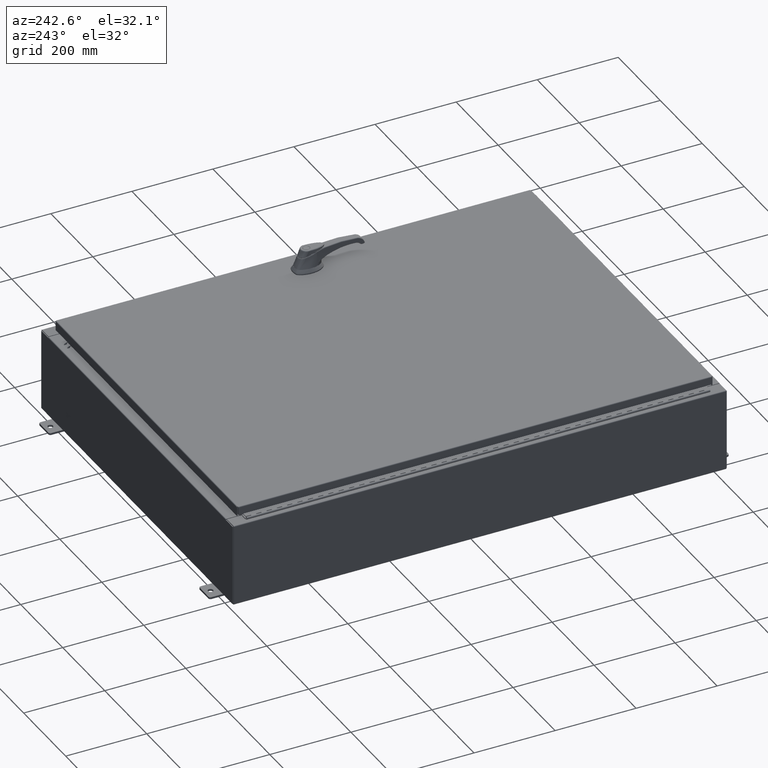
[diagram: clean part render]
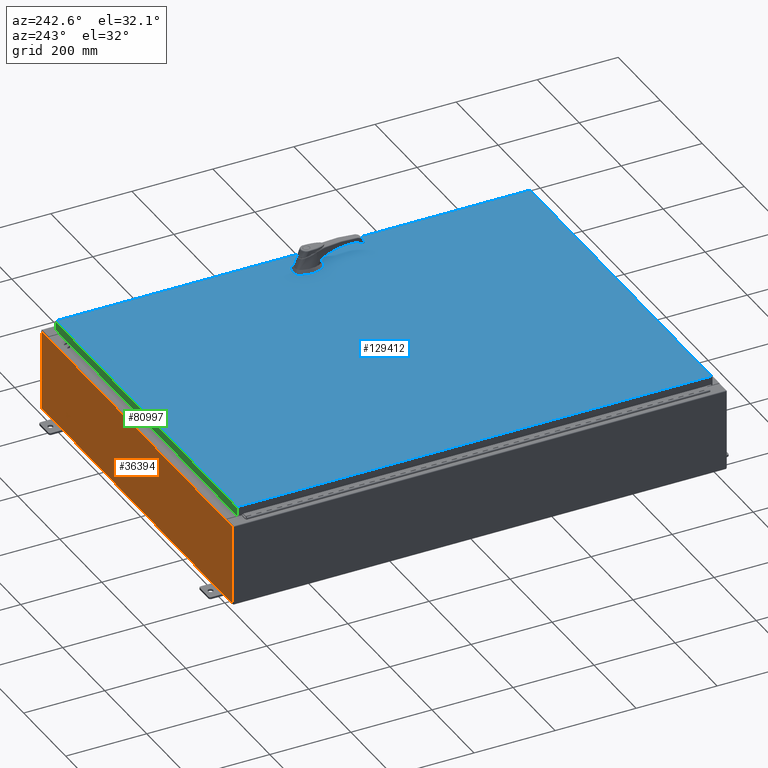
[diagram: same view with three faces highlighted in distinct colors, each labeled with its STEP entity id]
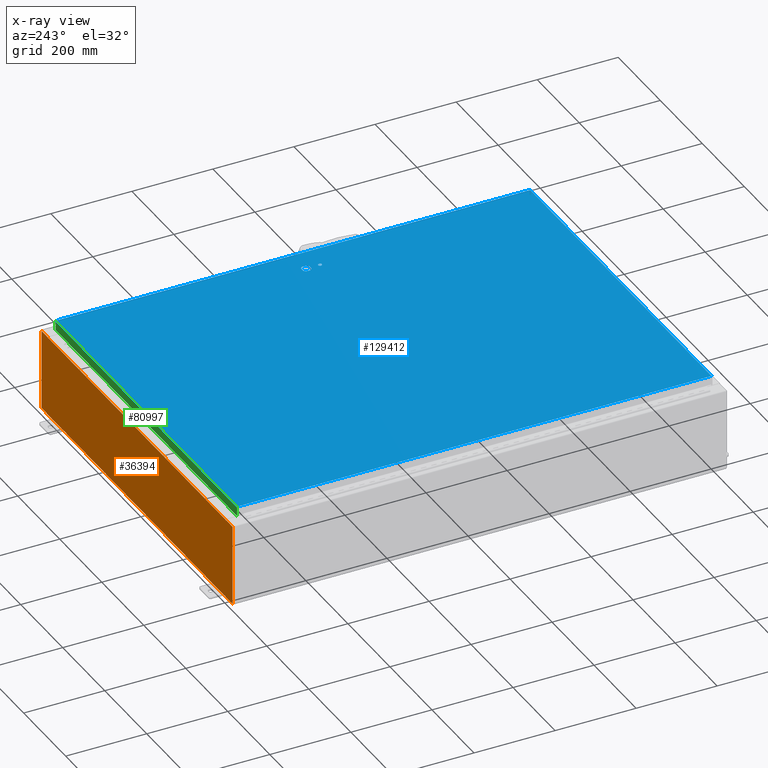
[diagram: x-ray of the same camera — body ghosted, the three highlighted faces saturated]
A machine part, auxiliary view with three faces highlighted in distinct colors.
The next image is the same camera in x-ray (body ghosted, the three faces saturated) — at least one of them is partly hidden behind the body in this view.
Their STEP definitions:

[orange] entity #36394 — the highlighted planar face has unit normal (0, -1, 0).
#1526 = DIRECTION ( 'NONE',  ( -1.000000000000000000, -0.0000000000000000000, -0.0000000000000000000 ) ) ;
#3626 = VECTOR ( 'NONE', #45635, 39.37007874015748100 ) ;
#8408 = ORIENTED_EDGE ( 'NONE', *, *, #131885, .F. ) ;
#9969 = EDGE_CURVE ( 'NONE', #25364, #134043, #122615, .T. ) ;
#9988 = PLANE ( 'NONE',  #117427 ) ;
#11700 = LINE ( 'NONE', #79971, #63613 ) ;
#13081 = VECTOR ( 'NONE', #34529, 39.37007874015748100 ) ;
#13874 = EDGE_CURVE ( 'NONE', #105020, #22393, #128257, .T. ) ;
#15534 = VECTOR ( 'NONE', #29879, 39.37007874015748100 ) ;
#18785 = EDGE_CURVE ( 'NONE', #134043, #75656, #129342, .T. ) ;
#18818 = ORIENTED_EDGE ( 'NONE', *, *, #130759, .T. ) ;
#20223 = VERTEX_POINT ( 'NONE', #79408 ) ;
#20431 = DIRECTION ( 'NONE',  ( 0.0000000000000000000, -0.0000000000000000000, -1.000000000000000000 ) ) ;
#22393 = VERTEX_POINT ( 'NONE', #46943 ) ;
#24419 = VECTOR ( 'NONE', #82714, 39.37007874015748100 ) ;
#25364 = VERTEX_POINT ( 'NONE', #45548 ) ;
#29879 = DIRECTION ( 'NONE',  ( 0.0000000000000000000, 0.0000000000000000000, -1.000000000000000000 ) ) ;
#30073 = DIRECTION ( 'NONE',  ( -0.0000000000000000000, 1.000000000000000000, -0.0000000000000000000 ) ) ;
#32538 = ORIENTED_EDGE ( 'NONE', *, *, #13874, .F. ) ;
#33141 = ORIENTED_EDGE ( 'NONE', *, *, #129634, .T. ) ;
#34529 = DIRECTION ( 'NONE',  ( -0.0000000000000000000, -0.0000000000000000000, 1.000000000000000000 ) ) ;
#36394 = ADVANCED_FACE ( 'NONE', ( #92485 ), #9988, .F. ) ;
#40284 = CIRCLE ( 'NONE', #71300, 0.01867499999999949400 ) ;
#40670 = LINE ( 'NONE', #86240, #13081 ) ;
#41398 = CARTESIAN_POINT ( 'NONE',  ( -16.65587499999999800, 0.0000000000000000000, 3.874950000000000100 ) ) ;
#44767 = DIRECTION ( 'NONE',  ( 1.000000000000000000, 0.0000000000000000000, 0.0000000000000000000 ) ) ;
#44915 = EDGE_CURVE ( 'NONE', #106220, #90435, #89660, .T. ) ;
#45548 = CARTESIAN_POINT ( 'NONE',  ( 17.92530000000000400, 0.0000000000000000000, 3.925300000000000500 ) ) ;
#45635 = DIRECTION ( 'NONE',  ( -8.681145560800009800E-014, 0.0000000000000000000, -1.000000000000000000 ) ) ;
#46943 = CARTESIAN_POINT ( 'NONE',  ( -16.67454999999999600, 0.0000000000000000000, 3.925300000000000500 ) ) ;
#50003 = ORIENTED_EDGE ( 'NONE', *, *, #77688, .T. ) ;
#51820 = DIRECTION ( 'NONE',  ( 0.0000000000000000000, 0.0000000000000000000, -1.000000000000000000 ) ) ;
#55176 = LINE ( 'NONE', #96252, #103937 ) ;
#56429 = CARTESIAN_POINT ( 'NONE',  ( -16.63719999999999600, 3.756290991288361700E-016, 3.912300000000000100 ) ) ;
#59054 = DIRECTION ( 'NONE',  ( 1.000000000000000000, 0.0000000000000000000, 0.0000000000000000000 ) ) ;
#62417 = LINE ( 'NONE', #122452, #117607 ) ;
#62728 = EDGE_CURVE ( 'NONE', #90435, #20223, #120056, .T. ) ;
#63431 = ORIENTED_EDGE ( 'NONE', *, *, #62728, .F. ) ;
#63574 = CARTESIAN_POINT ( 'NONE',  ( -17.92529999999999600, 0.0000000000000000000, -3.925299999999999100 ) ) ;
#63613 = VECTOR ( 'NONE', #59054, 39.37007874015748100 ) ;
#68989 = VERTEX_POINT ( 'NONE', #89304 ) ;
#69045 = VERTEX_POINT ( 'NONE', #120553 ) ;
#69971 = CARTESIAN_POINT ( 'NONE',  ( -16.63719999999999600, 3.756290991288361700E-016, 3.912300000000000100 ) ) ;
#70844 = VECTOR ( 'NONE', #1526, 39.37007874015748100 ) ;
#71133 = VECTOR ( 'NONE', #129013, 39.37007874015748100 ) ;
#71300 = AXIS2_PLACEMENT_3D ( 'NONE', #41398, #113952, #51820 ) ;
#75656 = VERTEX_POINT ( 'NONE', #110920 ) ;
#77688 = EDGE_CURVE ( 'NONE', #93826, #69045, #123100, .T. ) ;
#78621 = ORIENTED_EDGE ( 'NONE', *, *, #82834, .T. ) ;
#79408 = CARTESIAN_POINT ( 'NONE',  ( 16.63720000000000700, 0.0000000000000000000, 3.874950000000000100 ) ) ;
#79971 = CARTESIAN_POINT ( 'NONE',  ( -17.92529999999999600, 0.0000000000000000000, 3.925300000000000500 ) ) ;
#80075 = EDGE_CURVE ( 'NONE', #93826, #68989, #62417, .T. ) ;
#80154 = ORIENTED_EDGE ( 'NONE', *, *, #44915, .F. ) ;
#80904 = AXIS2_PLACEMENT_3D ( 'NONE', #92234, #30073, #102669 ) ;
#82587 = DIRECTION ( 'NONE',  ( 0.0000000000000000000, -1.000000000000000000, 0.0000000000000000000 ) ) ;
#82714 = DIRECTION ( 'NONE',  ( 0.0000000000000000000, 0.0000000000000000000, 1.000000000000000000 ) ) ;
#82834 = EDGE_CURVE ( 'NONE', #106220, #25364, #11700, .T. ) ;
#83646 = ORIENTED_EDGE ( 'NONE', *, *, #109137, .F. ) ;
#84717 = ORIENTED_EDGE ( 'NONE', *, *, #18785, .T. ) ;
#85789 = DIRECTION ( 'NONE',  ( 0.0000000000000000000, 0.0000000000000000000, 1.000000000000000000 ) ) ;
#86240 = CARTESIAN_POINT ( 'NONE',  ( -17.92529999999999600, 0.0000000000000000000, 3.925300000000000500 ) ) ;
#86282 = VERTEX_POINT ( 'NONE', #90761 ) ;
#86999 = CARTESIAN_POINT ( 'NONE',  ( -17.92529999999999600, 0.0000000000000000000, 3.925300000000000500 ) ) ;
#89304 = CARTESIAN_POINT ( 'NONE',  ( -16.63719999999999600, -0.0000000000000000000, 3.874950000000000100 ) ) ;
#89660 = LINE ( 'NONE', #118200, #3626 ) ;
#90435 = VERTEX_POINT ( 'NONE', #110387 ) ;
#90761 = CARTESIAN_POINT ( 'NONE',  ( -17.92529999999999600, 0.0000000000000000000, 3.925300000000000500 ) ) ;
#92234 = CARTESIAN_POINT ( 'NONE',  ( 16.65587500000000500, 0.0000000000000000000, 3.874950000000000100 ) ) ;
#92485 = FACE_OUTER_BOUND ( 'NONE', #131647, .T. ) ;
#93826 = VERTEX_POINT ( 'NONE', #69971 ) ;
#94513 = CARTESIAN_POINT ( 'NONE',  ( -16.67454999999999600, 0.0000000000000000000, 3.874950000000000100 ) ) ;
#96252 = CARTESIAN_POINT ( 'NONE',  ( 16.63720000000000700, 0.0000000000000000000, 0.0000000000000000000 ) ) ;
#100585 = VECTOR ( 'NONE', #44767, 39.37007874015748100 ) ;
#102669 = DIRECTION ( 'NONE',  ( 0.0000000000000000000, 0.0000000000000000000, -1.000000000000000000 ) ) ;
#103937 = VECTOR ( 'NONE', #85789, 39.37007874015748100 ) ;
#105020 = VERTEX_POINT ( 'NONE', #94513 ) ;
#106220 = VERTEX_POINT ( 'NONE', #121814 ) ;
#109137 = EDGE_CURVE ( 'NONE', #20223, #69045, #55176, .T. ) ;
#109396 = CARTESIAN_POINT ( 'NONE',  ( 17.92530000000000400, 0.0000000000000000000, -3.925299999999999100 ) ) ;
#110387 = CARTESIAN_POINT ( 'NONE',  ( 16.67455000000000700, 0.0000000000000000000, 3.874950000000000100 ) ) ;
#110920 = CARTESIAN_POINT ( 'NONE',  ( -17.92529999999999600, 0.0000000000000000000, -3.925299999999999100 ) ) ;
#112948 = CARTESIAN_POINT ( 'NONE',  ( 0.0000000000000000000, 0.0000000000000000000, 0.0000000000000000000 ) ) ;
#113952 = DIRECTION ( 'NONE',  ( -0.0000000000000000000, 1.000000000000000000, -0.0000000000000000000 ) ) ;
#117427 = AXIS2_PLACEMENT_3D ( 'NONE', #112948, #82587, #20431 ) ;
#117607 = VECTOR ( 'NONE', #122897, 39.37007874015748100 ) ;
#118200 = CARTESIAN_POINT ( 'NONE',  ( 16.67454999999967000, -0.0000000000000000000, -1.447541957108349400E-012 ) ) ;
#120056 = CIRCLE ( 'NONE', #80904, 0.01867499999999949400 ) ;
#120553 = CARTESIAN_POINT ( 'NONE',  ( 16.63720000000000700, 0.0000000000000000000, 3.912300000000000100 ) ) ;
#121624 = LINE ( 'NONE', #86999, #100585 ) ;
#121814 = CARTESIAN_POINT ( 'NONE',  ( 16.67455000000001100, 0.0000000000000000000, 3.925300000000000500 ) ) ;
#122452 = CARTESIAN_POINT ( 'NONE',  ( -16.63719999999999600, -0.0000000000000000000, 0.0000000000000000000 ) ) ;
#122615 = LINE ( 'NONE', #123272, #15534 ) ;
#122897 = DIRECTION ( 'NONE',  ( 0.0000000000000000000, 0.0000000000000000000, -1.000000000000000000 ) ) ;
#123100 = LINE ( 'NONE', #56429, #71133 ) ;
#123272 = CARTESIAN_POINT ( 'NONE',  ( 17.92530000000000400, 0.0000000000000000000, 3.925300000000000500 ) ) ;
#128239 = ORIENTED_EDGE ( 'NONE', *, *, #80075, .F. ) ;
#128257 = LINE ( 'NONE', #133967, #24419 ) ;
#129013 = DIRECTION ( 'NONE',  ( 1.000000000000000000, 0.0000000000000000000, 0.0000000000000000000 ) ) ;
#129342 = LINE ( 'NONE', #63574, #70844 ) ;
#129634 = EDGE_CURVE ( 'NONE', #75656, #86282, #40670, .T. ) ;
#129865 = ORIENTED_EDGE ( 'NONE', *, *, #9969, .T. ) ;
#130759 = EDGE_CURVE ( 'NONE', #86282, #22393, #121624, .T. ) ;
#131647 = EDGE_LOOP ( 'NONE', ( #32538, #8408, #128239, #50003, #83646, #63431, #80154, #78621, #129865, #84717, #33141, #18818 ) ) ;
#131885 = EDGE_CURVE ( 'NONE', #68989, #105020, #40284, .T. ) ;
#133967 = CARTESIAN_POINT ( 'NONE',  ( -16.67454999999999600, -0.0000000000000000000, 0.0000000000000000000 ) ) ;
#134043 = VERTEX_POINT ( 'NONE', #109396 ) ;

[blue] entity #129412 — the highlighted planar face has unit normal (0, 0, -1).
#1377 = CIRCLE ( 'NONE', #20882, 0.1715000000000011500 ) ;
#2992 = VERTEX_POINT ( 'NONE', #78071 ) ;
#3812 = CARTESIAN_POINT ( 'NONE',  ( 14.40649999999999800, -1.338000000000000100, 0.0000000000000000000 ) ) ;
#4955 = LINE ( 'NONE', #92320, #87752 ) ;
#5274 = ORIENTED_EDGE ( 'NONE', *, *, #33264, .F. ) ;
#8304 = VERTEX_POINT ( 'NONE', #104971 ) ;
#8793 = ORIENTED_EDGE ( 'NONE', *, *, #75239, .F. ) ;
#8945 = EDGE_CURVE ( 'NONE', #95171, #123572, #25440, .T. ) ;
#10334 = AXIS2_PLACEMENT_3D ( 'NONE', #40905, #41804, #114364 ) ;
#11170 = VERTEX_POINT ( 'NONE', #48664 ) ;
#11444 = DIRECTION ( 'NONE',  ( -1.000000000000000000, -0.0000000000000000000, -0.0000000000000000000 ) ) ;
#12738 = CIRCLE ( 'NONE', #54651, 0.4499999999999168000 ) ;
#13278 = CARTESIAN_POINT ( 'NONE',  ( 14.57799999999999900, -1.338000000000000100, 0.0000000000000000000 ) ) ;
#19886 = DIRECTION ( 'NONE',  ( 1.000000000000000000, 0.0000000000000000000, 0.0000000000000000000 ) ) ;
#20485 = DIRECTION ( 'NONE',  ( -0.0000000000000000000, 0.0000000000000000000, 1.000000000000000000 ) ) ;
#20791 = CIRCLE ( 'NONE', #38142, 0.4499999999999168000 ) ;
#20882 = AXIS2_PLACEMENT_3D ( 'NONE', #56346, #128939, #66769 ) ;
#20929 = VECTOR ( 'NONE', #75472, 39.37007874015748100 ) ;
#23741 = DIRECTION ( 'NONE',  ( 1.000000000000000000, 0.0000000000000000000, 0.0000000000000000000 ) ) ;
#24459 = AXIS2_PLACEMENT_3D ( 'NONE', #13278, #85898, #23741 ) ;
#25229 = CARTESIAN_POINT ( 'NONE',  ( 14.57799999999999900, 0.0000000000000000000, 0.0000000000000000000 ) ) ;
#25440 = LINE ( 'NONE', #63911, #77358 ) ;
#29592 = CIRCLE ( 'NONE', #97818, 0.4499999999999168000 ) ;
#30166 = DIRECTION ( 'NONE',  ( 1.000000000000000000, -0.0000000000000000000, -0.0000000000000000000 ) ) ;
#32635 = FACE_OUTER_BOUND ( 'NONE', #111705, .T. ) ;
#33151 = CARTESIAN_POINT ( 'NONE',  ( 14.77822737075630900, 0.4029999999999252000, 0.0000000000000000000 ) ) ;
#33264 = EDGE_CURVE ( 'NONE', #100321, #111673, #12738, .T. ) ;
#35160 = EDGE_CURVE ( 'NONE', #99345, #11170, #66645, .T. ) ;
#35661 = DIRECTION ( 'NONE',  ( 1.000000000000000000, 0.0000000000000000000, 0.0000000000000000000 ) ) ;
#36234 = VECTOR ( 'NONE', #110080, 39.37007874015748100 ) ;
#38142 = AXIS2_PLACEMENT_3D ( 'NONE', #108001, #45821, #118407 ) ;
#39381 = CARTESIAN_POINT ( 'NONE',  ( 14.98099999999992900, -0.2002273707563079800, 0.0000000000000000000 ) ) ;
#40723 = EDGE_LOOP ( 'NONE', ( #68009, #110943 ) ) ;
#40905 = CARTESIAN_POINT ( 'NONE',  ( 0.0000000000000000000, 0.0000000000000000000, 0.0000000000000000000 ) ) ;
#41552 = ORIENTED_EDGE ( 'NONE', *, *, #56554, .F. ) ;
#41804 = DIRECTION ( 'NONE',  ( 0.0000000000000000000, 0.0000000000000000000, -1.000000000000000000 ) ) ;
#45308 = ORIENTED_EDGE ( 'NONE', *, *, #131421, .T. ) ;
#45821 = DIRECTION ( 'NONE',  ( -0.0000000000000000000, 0.0000000000000000000, 1.000000000000000000 ) ) ;
#47445 = CARTESIAN_POINT ( 'NONE',  ( 14.98099999999992700, 8.175868191945441800E-014, 0.0000000000000000000 ) ) ;
#47817 = CIRCLE ( 'NONE', #24459, 0.1715000000000011500 ) ;
#48664 = CARTESIAN_POINT ( 'NONE',  ( 14.37777262924369000, 0.4029999999999252000, 0.0000000000000000000 ) ) ;
#50509 = VERTEX_POINT ( 'NONE', #117949 ) ;
#51587 = ORIENTED_EDGE ( 'NONE', *, *, #116804, .F. ) ;
#52394 = ORIENTED_EDGE ( 'NONE', *, *, #107108, .F. ) ;
#54651 = AXIS2_PLACEMENT_3D ( 'NONE', #57490, #130096, #67947 ) ;
#56346 = CARTESIAN_POINT ( 'NONE',  ( 14.57799999999999900, -1.338000000000000100, 0.0000000000000000000 ) ) ;
#56554 = EDGE_CURVE ( 'NONE', #99609, #99345, #71043, .T. ) ;
#56928 = FACE_BOUND ( 'NONE', #40723, .T. ) ;
#56958 = LINE ( 'NONE', #113304, #78099 ) ;
#57490 = CARTESIAN_POINT ( 'NONE',  ( 14.57799999999999900, 0.0000000000000000000, 0.0000000000000000000 ) ) ;
#57763 = LINE ( 'NONE', #124816, #109750 ) ;
#60999 = VERTEX_POINT ( 'NONE', #101371 ) ;
#63295 = ORIENTED_EDGE ( 'NONE', *, *, #35160, .F. ) ;
#63390 = VECTOR ( 'NONE', #86474, 39.37007874015748100 ) ;
#63911 = CARTESIAN_POINT ( 'NONE',  ( 16.99029999999999800, -23.00630000000000300, -2.048885995248197400E-016 ) ) ;
#64065 = CARTESIAN_POINT ( 'NONE',  ( -16.99029999999999800, -23.00630000000000300, 1.946441695485787500E-015 ) ) ;
#65879 = CARTESIAN_POINT ( 'NONE',  ( 14.17500000000007400, 0.2002273707563079800, 0.0000000000000000000 ) ) ;
#66645 = LINE ( 'NONE', #127733, #63390 ) ;
#66769 = DIRECTION ( 'NONE',  ( 1.000000000000000000, 0.0000000000000000000, 0.0000000000000000000 ) ) ;
#67153 = DIRECTION ( 'NONE',  ( 0.0000000000000000000, -1.000000000000000000, 0.0000000000000000000 ) ) ;
#67758 = CARTESIAN_POINT ( 'NONE',  ( 16.99029999999999800, -23.00630000000000300, -2.048885995248197400E-016 ) ) ;
#67947 = DIRECTION ( 'NONE',  ( 1.000000000000000000, 0.0000000000000000000, 0.0000000000000000000 ) ) ;
#68009 = ORIENTED_EDGE ( 'NONE', *, *, #86992, .F. ) ;
#71043 = CIRCLE ( 'NONE', #115295, 0.4499999999999168000 ) ;
#75239 = EDGE_CURVE ( 'NONE', #60999, #100321, #56958, .T. ) ;
#75472 = DIRECTION ( 'NONE',  ( 0.0000000000000000000, -1.000000000000000000, 0.0000000000000000000 ) ) ;
#75854 = EDGE_CURVE ( 'NONE', #112842, #95171, #4955, .T. ) ;
#76083 = LINE ( 'NONE', #85958, #20929 ) ;
#77182 = CARTESIAN_POINT ( 'NONE',  ( 14.17500000000007400, 0.0000000000000000000, 0.0000000000000000000 ) ) ;
#77358 = VECTOR ( 'NONE', #84829, 39.37007874015748100 ) ;
#78071 = CARTESIAN_POINT ( 'NONE',  ( -16.99029999999998400, 23.00630000000001000, -1.297627796990525000E-015 ) ) ;
#78099 = VECTOR ( 'NONE', #19886, 39.37007874015748100 ) ;
#81970 = VECTOR ( 'NONE', #67153, 39.37007874015748100 ) ;
#82637 = CARTESIAN_POINT ( 'NONE',  ( 14.57799999999999900, 0.0000000000000000000, 0.0000000000000000000 ) ) ;
#84829 = DIRECTION ( 'NONE',  ( 0.0000000000000000000, 1.000000000000000000, 0.0000000000000000000 ) ) ;
#85239 = LINE ( 'NONE', #77182, #81970 ) ;
#85898 = DIRECTION ( 'NONE',  ( -0.0000000000000000000, 0.0000000000000000000, 1.000000000000000000 ) ) ;
#85958 = CARTESIAN_POINT ( 'NONE',  ( -16.99029999999998400, 23.00630000000001000, -1.297627796990525000E-015 ) ) ;
#86474 = DIRECTION ( 'NONE',  ( -1.000000000000000000, 0.0000000000000000000, 0.0000000000000000000 ) ) ;
#86992 = EDGE_CURVE ( 'NONE', #8304, #110323, #1377, .T. ) ;
#87752 = VECTOR ( 'NONE', #30166, 39.37007874015748100 ) ;
#91439 = LINE ( 'NONE', #47445, #36234 ) ;
#92320 = CARTESIAN_POINT ( 'NONE',  ( -16.99029999999999800, -23.00630000000000300, 1.946441695485787500E-015 ) ) ;
#93074 = DIRECTION ( 'NONE',  ( 1.000000000000000000, 0.0000000000000000000, 0.0000000000000000000 ) ) ;
#93935 = CARTESIAN_POINT ( 'NONE',  ( 16.99029999999999800, 23.00630000000001000, 1.946441695485787500E-015 ) ) ;
#95171 = VERTEX_POINT ( 'NONE', #67758 ) ;
#97393 = EDGE_CURVE ( 'NONE', #110350, #50509, #85239, .T. ) ;
#97771 = EDGE_LOOP ( 'NONE', ( #134480, #5274, #8793, #52394, #112801, #51587, #63295, #41552 ) ) ;
#97818 = AXIS2_PLACEMENT_3D ( 'NONE', #82637, #20485, #93074 ) ;
#97826 = DIRECTION ( 'NONE',  ( -0.0000000000000000000, 0.0000000000000000000, 1.000000000000000000 ) ) ;
#99345 = VERTEX_POINT ( 'NONE', #33151 ) ;
#99609 = VERTEX_POINT ( 'NONE', #130132 ) ;
#100321 = VERTEX_POINT ( 'NONE', #132266 ) ;
#101371 = CARTESIAN_POINT ( 'NONE',  ( 14.37777262924369000, -0.4029999999999252000, 0.0000000000000000000 ) ) ;
#102939 = EDGE_CURVE ( 'NONE', #123572, #2992, #57763, .T. ) ;
#103483 = ORIENTED_EDGE ( 'NONE', *, *, #75854, .T. ) ;
#103999 = PLANE ( 'NONE',  #10334 ) ;
#104971 = CARTESIAN_POINT ( 'NONE',  ( 14.74950000000000100, -1.338000000000000100, 0.0000000000000000000 ) ) ;
#106091 = EDGE_CURVE ( 'NONE', #99609, #111673, #91439, .T. ) ;
#107108 = EDGE_CURVE ( 'NONE', #50509, #60999, #29592, .T. ) ;
#107185 = ORIENTED_EDGE ( 'NONE', *, *, #102939, .T. ) ;
#108001 = CARTESIAN_POINT ( 'NONE',  ( 14.57799999999999900, 0.0000000000000000000, 0.0000000000000000000 ) ) ;
#109750 = VECTOR ( 'NONE', #11444, 39.37007874015748100 ) ;
#110080 = DIRECTION ( 'NONE',  ( 5.457491617345625800E-015, -1.000000000000000000, 0.0000000000000000000 ) ) ;
#110323 = VERTEX_POINT ( 'NONE', #3812 ) ;
#110350 = VERTEX_POINT ( 'NONE', #65879 ) ;
#110943 = ORIENTED_EDGE ( 'NONE', *, *, #119771, .F. ) ;
#111673 = VERTEX_POINT ( 'NONE', #39381 ) ;
#111705 = EDGE_LOOP ( 'NONE', ( #103483, #117558, #107185, #45308 ) ) ;
#112123 = FACE_BOUND ( 'NONE', #97771, .T. ) ;
#112801 = ORIENTED_EDGE ( 'NONE', *, *, #97393, .F. ) ;
#112842 = VERTEX_POINT ( 'NONE', #64065 ) ;
#113304 = CARTESIAN_POINT ( 'NONE',  ( 0.0000000000000000000, -0.4029999999999252000, 0.0000000000000000000 ) ) ;
#114364 = DIRECTION ( 'NONE',  ( -1.000000000000000000, 0.0000000000000000000, -0.0000000000000000000 ) ) ;
#115295 = AXIS2_PLACEMENT_3D ( 'NONE', #25229, #97826, #35661 ) ;
#116804 = EDGE_CURVE ( 'NONE', #11170, #110350, #20791, .T. ) ;
#117558 = ORIENTED_EDGE ( 'NONE', *, *, #8945, .T. ) ;
#117949 = CARTESIAN_POINT ( 'NONE',  ( 14.17500000000007400, -0.2002273707563079800, 0.0000000000000000000 ) ) ;
#118407 = DIRECTION ( 'NONE',  ( 1.000000000000000000, 0.0000000000000000000, 0.0000000000000000000 ) ) ;
#119771 = EDGE_CURVE ( 'NONE', #110323, #8304, #47817, .T. ) ;
#123572 = VERTEX_POINT ( 'NONE', #93935 ) ;
#124816 = CARTESIAN_POINT ( 'NONE',  ( 16.99029999999999800, 23.00630000000001000, 1.946441695485787500E-015 ) ) ;
#127733 = CARTESIAN_POINT ( 'NONE',  ( 0.0000000000000000000, 0.4029999999999252000, 0.0000000000000000000 ) ) ;
#128939 = DIRECTION ( 'NONE',  ( -0.0000000000000000000, 0.0000000000000000000, 1.000000000000000000 ) ) ;
#129412 = ADVANCED_FACE ( 'NONE', ( #56928, #32635, #112123 ), #103999, .F. ) ;
#130096 = DIRECTION ( 'NONE',  ( -0.0000000000000000000, 0.0000000000000000000, 1.000000000000000000 ) ) ;
#130132 = CARTESIAN_POINT ( 'NONE',  ( 14.98099999999992700, 0.2002273707563075900, 0.0000000000000000000 ) ) ;
#131421 = EDGE_CURVE ( 'NONE', #2992, #112842, #76083, .T. ) ;
#132266 = CARTESIAN_POINT ( 'NONE',  ( 14.77822737075630900, -0.4029999999999252000, 0.0000000000000000000 ) ) ;
#134480 = ORIENTED_EDGE ( 'NONE', *, *, #106091, .T. ) ;

[green] entity #80997 — the highlighted planar face has unit normal (0, -1, -0).
#3712 = CARTESIAN_POINT ( 'NONE',  ( -1.450060434394706800E-029, 23.09400000000000500, 1.172282251335220500E-013 ) ) ;
#14171 = ORIENTED_EDGE ( 'NONE', *, *, #54795, .T. ) ;
#16336 = VERTEX_POINT ( 'NONE', #95247 ) ;
#18960 = CARTESIAN_POINT ( 'NONE',  ( -17.07799999999999600, 23.09400000000000500, -0.08769999999999550400 ) ) ;
#20548 = VECTOR ( 'NONE', #44370, 39.37007874015748100 ) ;
#21764 = FACE_OUTER_BOUND ( 'NONE', #33618, .T. ) ;
#23563 = CARTESIAN_POINT ( 'NONE',  ( -16.98915786437626400, 23.09400000000000500, -0.07469999999999962800 ) ) ;
#29381 = VERTEX_POINT ( 'NONE', #56995 ) ;
#32457 = VECTOR ( 'NONE', #112691, 39.37007874015748100 ) ;
#33375 = EDGE_CURVE ( 'NONE', #29381, #57363, #131190, .T. ) ;
#33618 = EDGE_LOOP ( 'NONE', ( #58220, #14171, #112002, #68238 ) ) ;
#35914 = DIRECTION ( 'NONE',  ( 0.0000000000000000000, 5.064839849203707700E-015, -1.000000000000000000 ) ) ;
#43692 = DIRECTION ( 'NONE',  ( 1.000000000000000000, 8.758115402030108600E-047, 1.239713195391617600E-016 ) ) ;
#44017 = VERTEX_POINT ( 'NONE', #50636 ) ;
#44370 = DIRECTION ( 'NONE',  ( -0.0000000000000000000, 5.064839849203707700E-015, -1.000000000000000000 ) ) ;
#47066 = EDGE_CURVE ( 'NONE', #44017, #16336, #70739, .T. ) ;
#48430 = CARTESIAN_POINT ( 'NONE',  ( -16.98915786437626400, 23.09400000000000500, -0.08769999999999550400 ) ) ;
#50636 = CARTESIAN_POINT ( 'NONE',  ( -16.98915786437626400, 23.09400000000000800, -0.9377000000000040900 ) ) ;
#54598 = LINE ( 'NONE', #23563, #20548 ) ;
#54795 = EDGE_CURVE ( 'NONE', #29381, #16336, #59984, .T. ) ;
#56995 = CARTESIAN_POINT ( 'NONE',  ( 16.98915786437627100, 23.09400000000000500, -0.08769999999999550400 ) ) ;
#57363 = VERTEX_POINT ( 'NONE', #48430 ) ;
#58220 = ORIENTED_EDGE ( 'NONE', *, *, #33375, .F. ) ;
#59984 = LINE ( 'NONE', #133139, #32457 ) ;
#67378 = EDGE_CURVE ( 'NONE', #57363, #44017, #54598, .T. ) ;
#67503 = VECTOR ( 'NONE', #43692, 39.37007874015748100 ) ;
#68238 = ORIENTED_EDGE ( 'NONE', *, *, #67378, .F. ) ;
#70739 = LINE ( 'NONE', #85022, #67503 ) ;
#80491 = AXIS2_PLACEMENT_3D ( 'NONE', #3712, #98080, #35914 ) ;
#80997 = ADVANCED_FACE ( 'NONE', ( #21764 ), #87643, .F. ) ;
#85022 = CARTESIAN_POINT ( 'NONE',  ( -17.07799999999999600, 23.09400000000000800, -0.9377000000000040900 ) ) ;
#87643 = PLANE ( 'NONE',  #80491 ) ;
#91112 = DIRECTION ( 'NONE',  ( -1.000000000000000000, -6.278948793603129100E-031, -3.245122892416731400E-045 ) ) ;
#95247 = CARTESIAN_POINT ( 'NONE',  ( 16.98915786437627100, 23.09400000000000800, -0.9376999999999997600 ) ) ;
#98080 = DIRECTION ( 'NONE',  ( 6.278948793603128200E-031, -1.000000000000000000, -5.064839849203707700E-015 ) ) ;
#103627 = VECTOR ( 'NONE', #91112, 39.37007874015748100 ) ;
#112002 = ORIENTED_EDGE ( 'NONE', *, *, #47066, .F. ) ;
#112691 = DIRECTION ( 'NONE',  ( 0.0000000000000000000, 5.064839849203707700E-015, -1.000000000000000000 ) ) ;
#131190 = LINE ( 'NONE', #18960, #103627 ) ;
#133139 = CARTESIAN_POINT ( 'NONE',  ( 16.98915786437627100, 23.09400000000000500, 1.172282251335220500E-013 ) ) ;